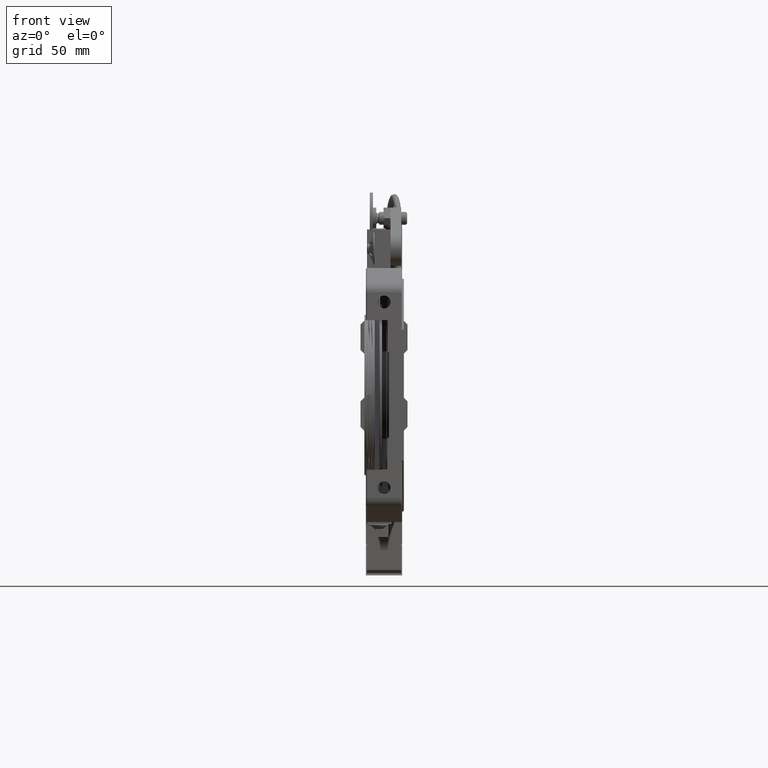
[diagram: clean part render]
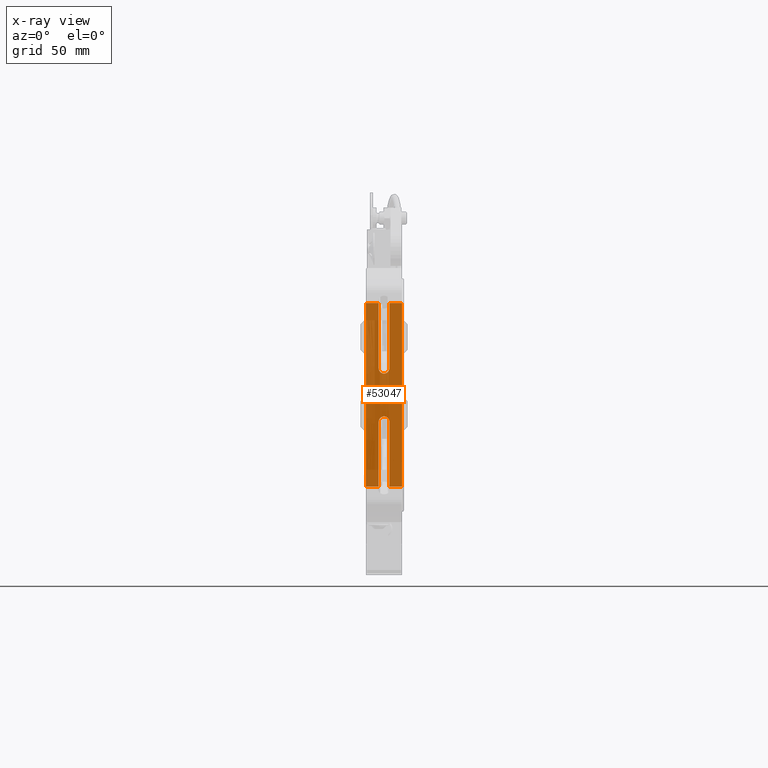
[diagram: x-ray — body ghosted, one internal face saturated and labeled with its STEP entity id]
A machine part, front view, then the same camera in x-ray: the body is ghosted and one INTERNAL B-rep face — a face not visible from any outside direction — is saturated and labeled: STEP entity #53047.
In plain terms, the highlighted planar face has unit normal (0, -1, -0).
Its self-contained STEP definition (entity closure, byte-faithful):
#343 = LINE ( 'NONE', #54379, #6450 ) ;
#478 = LINE ( 'NONE', #55447, #5070 ) ;
#943 = DIRECTION ( 'NONE',  ( 1.000000000000000000, 2.775557561562891351E-17, 0.000000000000000000 ) ) ;
#1652 = CARTESIAN_POINT ( 'NONE',  ( -0.09842519685035888699, 2.854330708661453109, -0.4921259842519685179 ) ) ;
#2349 = CIRCLE ( 'NONE', #15668, 0.09842519685039370636 ) ;
#2499 = DIRECTION ( 'NONE',  ( 1.421904488505579901E-16, 3.946577754891877623E-33, -1.000000000000000000 ) ) ;
#3747 = ORIENTED_EDGE ( 'NONE', *, *, #13858, .F. ) ;
#4355 = VECTOR ( 'NONE', #51850, 39.37007874015748143 ) ;
#4386 = CARTESIAN_POINT ( 'NONE',  ( 0.3346456692913732378, 2.854330708661453109, 1.692913385826771533 ) ) ;
#5070 = VECTOR ( 'NONE', #21028, 39.37007874015748143 ) ;
#5196 = ORIENTED_EDGE ( 'NONE', *, *, #35851, .T. ) ;
#5650 = EDGE_CURVE ( 'NONE', #60896, #12563, #56936, .T. ) ;
#6070 = CARTESIAN_POINT ( 'NONE',  ( -0.09842519685035909516, 2.854330708661453109, -1.692913385826771533 ) ) ;
#6172 = LINE ( 'NONE', #30994, #33024 ) ;
#6450 = VECTOR ( 'NONE', #45302, 39.37007874015748143 ) ;
#6855 = VERTEX_POINT ( 'NONE', #16229 ) ;
#7269 = CARTESIAN_POINT ( 'NONE',  ( 0.09842519685042852573, 2.854330708661453109, 0.4921259842519685179 ) ) ;
#7588 = VECTOR ( 'NONE', #57303, 39.37007874015748143 ) ;
#8597 = VERTEX_POINT ( 'NONE', #55963 ) ;
#9456 = ORIENTED_EDGE ( 'NONE', *, *, #16344, .T. ) ;
#11209 = ORIENTED_EDGE ( 'NONE', *, *, #26342, .T. ) ;
#11243 = VERTEX_POINT ( 'NONE', #44126 ) ;
#11422 = VECTOR ( 'NONE', #12799, 39.37007874015748143 ) ;
#11746 = VERTEX_POINT ( 'NONE', #42053 ) ;
#12563 = VERTEX_POINT ( 'NONE', #6070 ) ;
#12799 = DIRECTION ( 'NONE',  ( 1.000000000000000000, 2.775557561562891351E-17, 0.000000000000000000 ) ) ;
#13267 = ORIENTED_EDGE ( 'NONE', *, *, #35622, .F. ) ;
#13358 = EDGE_CURVE ( 'NONE', #47988, #11746, #24264, .T. ) ;
#13858 = EDGE_CURVE ( 'NONE', #11243, #11746, #343, .T. ) ;
#15668 = AXIS2_PLACEMENT_3D ( 'NONE', #33572, #53173, #19045 ) ;
#16229 = CARTESIAN_POINT ( 'NONE',  ( 0.09842519685042834532, 2.854330708661453109, 1.692913385826771533 ) ) ;
#16344 = EDGE_CURVE ( 'NONE', #6855, #47988, #32250, .T. ) ;
#16768 = LINE ( 'NONE', #52495, #7588 ) ;
#17353 = VECTOR ( 'NONE', #26702, 39.37007874015748143 ) ;
#17780 = VERTEX_POINT ( 'NONE', #41679 ) ;
#19045 = DIRECTION ( 'NONE',  ( -1.000000000000000000, 0.000000000000000000, 0.000000000000000000 ) ) ;
#20512 = CARTESIAN_POINT ( 'NONE',  ( -0.09842519685035888699, 2.854330708661453109, 0.4921259842519685179 ) ) ;
#21028 = DIRECTION ( 'NONE',  ( 0.000000000000000000, 0.000000000000000000, -1.000000000000000000 ) ) ;
#24264 = LINE ( 'NONE', #58982, #27482 ) ;
#24709 = ORIENTED_EDGE ( 'NONE', *, *, #55625, .T. ) ;
#24945 = EDGE_CURVE ( 'NONE', #35373, #8597, #42372, .T. ) ;
#25568 = EDGE_CURVE ( 'NONE', #41411, #51013, #2349, .T. ) ;
#26342 = EDGE_CURVE ( 'NONE', #11243, #45068, #16768, .T. ) ;
#26561 = ORIENTED_EDGE ( 'NONE', *, *, #13358, .T. ) ;
#26702 = DIRECTION ( 'NONE',  ( 1.000000000000000000, 2.775557561562891351E-17, 0.000000000000000000 ) ) ;
#27033 = CARTESIAN_POINT ( 'NONE',  ( -0.3346456692913040709, 2.854330708661453109, -1.692913385826771533 ) ) ;
#27482 = VECTOR ( 'NONE', #39920, 39.37007874015748143 ) ;
#28657 = PLANE ( 'NONE',  #39547 ) ;
#30617 = LINE ( 'NONE', #1652, #43293 ) ;
#30994 = CARTESIAN_POINT ( 'NONE',  ( -0.09842519685035888699, 2.854330708661453109, 0.4921259842519685179 ) ) ;
#31307 = EDGE_CURVE ( 'NONE', #6855, #41411, #36588, .T. ) ;
#32250 = LINE ( 'NONE', #46975, #4355 ) ;
#32742 = AXIS2_PLACEMENT_3D ( 'NONE', #34753, #58526, #54349 ) ;
#33024 = VECTOR ( 'NONE', #50608, 39.37007874015748143 ) ;
#33572 = CARTESIAN_POINT ( 'NONE',  ( 3.496765431890256920E-14, 2.854330708661453109, 0.4921259842519685179 ) ) ;
#34753 = CARTESIAN_POINT ( 'NONE',  ( 3.496765431890256920E-14, 2.854330708661453109, -0.4921259842519685179 ) ) ;
#35373 = VERTEX_POINT ( 'NONE', #42724 ) ;
#35622 = EDGE_CURVE ( 'NONE', #51013, #8597, #6172, .T. ) ;
#35758 = DIRECTION ( 'NONE',  ( -1.706285386206695733E-16, -4.735893305870252737E-33, -1.000000000000000000 ) ) ;
#35851 = EDGE_CURVE ( 'NONE', #17780, #12563, #30617, .T. ) ;
#36588 = LINE ( 'NONE', #7269, #63399 ) ;
#37662 = CARTESIAN_POINT ( 'NONE',  ( 0.09842519685042852573, 2.854330708661453109, 0.4921259842519685179 ) ) ;
#39509 = CARTESIAN_POINT ( 'NONE',  ( -0.3346456692913040709, 2.854330708661453109, -2.342519685039369470 ) ) ;
#39547 = AXIS2_PLACEMENT_3D ( 'NONE', #39509, #59489, #943 ) ;
#39920 = DIRECTION ( 'NONE',  ( 0.000000000000000000, 0.000000000000000000, -1.000000000000000000 ) ) ;
#41411 = VERTEX_POINT ( 'NONE', #37662 ) ;
#41425 = ORIENTED_EDGE ( 'NONE', *, *, #56107, .F. ) ;
#41679 = CARTESIAN_POINT ( 'NONE',  ( -0.09842519685035888699, 2.854330708661453109, -0.4921259842519685179 ) ) ;
#41939 = CIRCLE ( 'NONE', #32742, 0.09842519685039370636 ) ;
#42053 = CARTESIAN_POINT ( 'NONE',  ( 0.3346456692913732378, 2.854330708661453109, -1.692913385826771533 ) ) ;
#42372 = LINE ( 'NONE', #53013, #11422 ) ;
#42724 = CARTESIAN_POINT ( 'NONE',  ( -0.3346456692913040709, 2.854330708661453109, 1.692913385826771533 ) ) ;
#43293 = VECTOR ( 'NONE', #35758, 39.37007874015748143 ) ;
#44126 = CARTESIAN_POINT ( 'NONE',  ( 0.09842519685042834532, 2.854330708661453109, -1.692913385826771533 ) ) ;
#44739 = ORIENTED_EDGE ( 'NONE', *, *, #24945, .T. ) ;
#45068 = VERTEX_POINT ( 'NONE', #51090 ) ;
#45302 = DIRECTION ( 'NONE',  ( 1.000000000000000000, 2.775557561562891351E-17, 0.000000000000000000 ) ) ;
#46975 = CARTESIAN_POINT ( 'NONE',  ( -0.3346456692913040709, 2.854330708661453109, 1.692913385826771533 ) ) ;
#47924 = FACE_OUTER_BOUND ( 'NONE', #56399, .T. ) ;
#47988 = VERTEX_POINT ( 'NONE', #4386 ) ;
#50608 = DIRECTION ( 'NONE',  ( -1.706285386206695733E-16, -4.735893305870252737E-33, 1.000000000000000000 ) ) ;
#51013 = VERTEX_POINT ( 'NONE', #20512 ) ;
#51090 = CARTESIAN_POINT ( 'NONE',  ( 0.09842519685042852573, 2.854330708661453109, -0.4921259842519685179 ) ) ;
#51183 = ORIENTED_EDGE ( 'NONE', *, *, #5650, .F. ) ;
#51850 = DIRECTION ( 'NONE',  ( 1.000000000000000000, 2.775557561562891351E-17, 0.000000000000000000 ) ) ;
#52495 = CARTESIAN_POINT ( 'NONE',  ( 0.09842519685042852573, 2.854330708661453109, -0.4921259842519685179 ) ) ;
#53013 = CARTESIAN_POINT ( 'NONE',  ( -0.3346456692913040709, 2.854330708661453109, 1.692913385826771533 ) ) ;
#53047 = ADVANCED_FACE ( 'NONE', ( #47924 ), #28657, .F. ) ;
#53173 = DIRECTION ( 'NONE',  ( -2.775557561562891351E-17, 1.000000000000000000, 1.232595164407830946E-32 ) ) ;
#54349 = DIRECTION ( 'NONE',  ( -1.000000000000000000, 0.000000000000000000, 0.000000000000000000 ) ) ;
#54379 = CARTESIAN_POINT ( 'NONE',  ( -0.3346456692913040709, 2.854330708661453109, -1.692913385826771533 ) ) ;
#55447 = CARTESIAN_POINT ( 'NONE',  ( -0.3346456692913040709, 2.854330708661453109, -2.342519685039369470 ) ) ;
#55625 = EDGE_CURVE ( 'NONE', #45068, #17780, #41939, .T. ) ;
#55963 = CARTESIAN_POINT ( 'NONE',  ( -0.09842519685035909516, 2.854330708661453109, 1.692913385826771533 ) ) ;
#56107 = EDGE_CURVE ( 'NONE', #35373, #60896, #478, .T. ) ;
#56399 = EDGE_LOOP ( 'NONE', ( #5196, #51183, #41425, #44739, #13267, #56611, #59327, #9456, #26561, #3747, #11209, #24709 ) ) ;
#56611 = ORIENTED_EDGE ( 'NONE', *, *, #25568, .F. ) ;
#56936 = LINE ( 'NONE', #27033, #17353 ) ;
#57303 = DIRECTION ( 'NONE',  ( 1.421904488505579901E-16, 3.946577754891877623E-33, 1.000000000000000000 ) ) ;
#58526 = DIRECTION ( 'NONE',  ( 2.775557561562891351E-17, -1.000000000000000000, -1.232595164407830946E-32 ) ) ;
#58982 = CARTESIAN_POINT ( 'NONE',  ( 0.3346456692913732378, 2.854330708661453109, -2.342519685039369470 ) ) ;
#59327 = ORIENTED_EDGE ( 'NONE', *, *, #31307, .F. ) ;
#59489 = DIRECTION ( 'NONE',  ( 2.775557561562891351E-17, -1.000000000000000000, -1.232595164407830946E-32 ) ) ;
#60896 = VERTEX_POINT ( 'NONE', #61657 ) ;
#61657 = CARTESIAN_POINT ( 'NONE',  ( -0.3346456692913040709, 2.854330708661453109, -1.692913385826771533 ) ) ;
#63399 = VECTOR ( 'NONE', #2499, 39.37007874015748143 ) ;